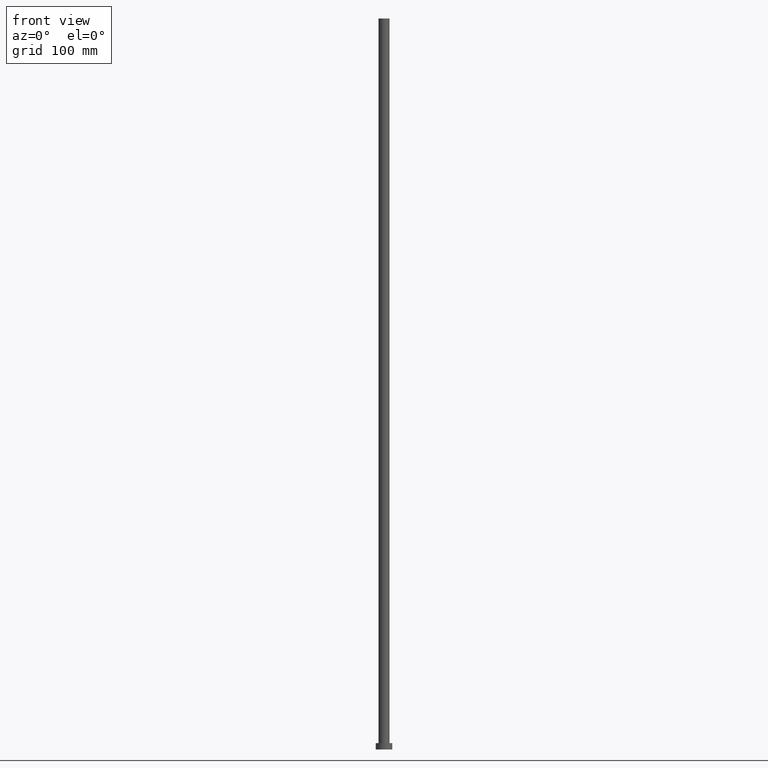
[diagram: clean part render]
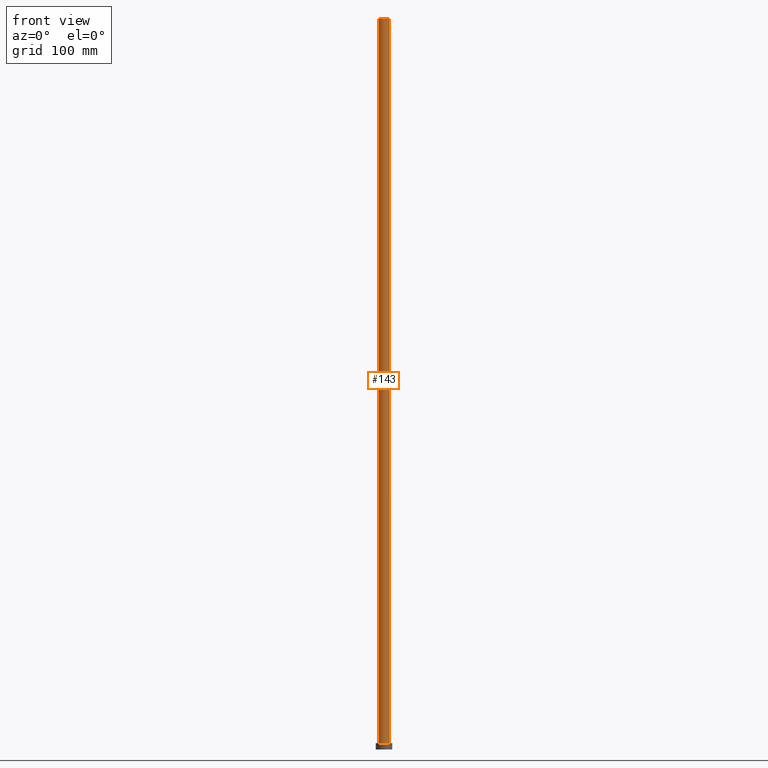
[diagram: same view with one face highlighted and labeled with its STEP entity id]
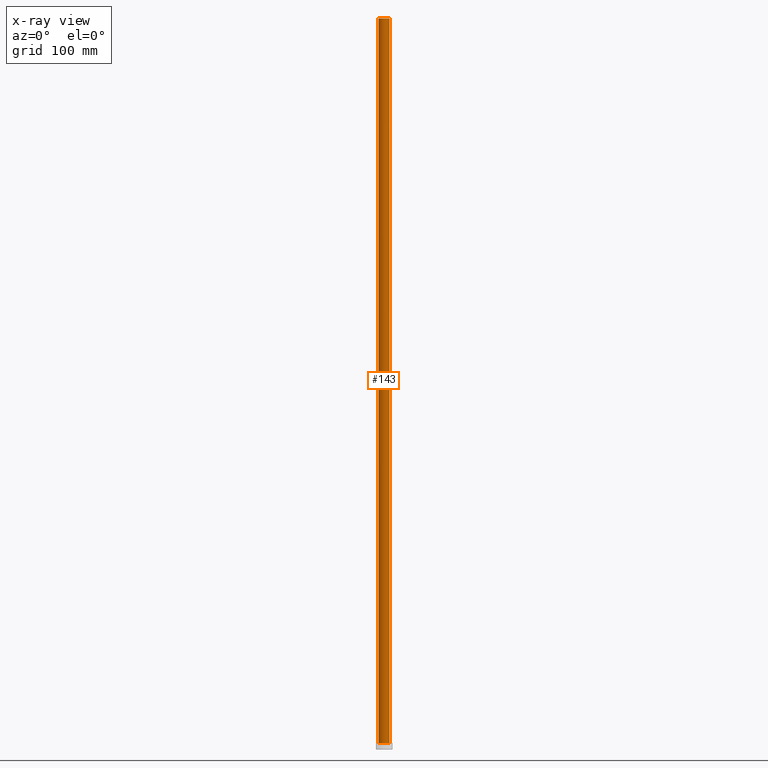
[diagram: x-ray of the same camera — body ghosted, the highlighted face saturated]
A machine part, front view. The second image highlights one B-rep face of the part: STEP entity #143.
The next image is the same camera in x-ray: the body ghosted, the highlighted face saturated — about 0% of this face is hidden behind the body in this view.
In plain terms, the highlighted cylindrical surface (edge-blend (fillet) strip) has radius 6 mm, axis along (-0, -0, -1).
Its self-contained STEP definition (entity closure, byte-faithful):
#11 = VERTEX_POINT ( 'NONE', #95 ) ;
#12 = DIRECTION ( 'NONE',  ( 1.000000000000000000, 0.000000000000000000, 0.000000000000000000 ) ) ;
#20 = CARTESIAN_POINT ( 'NONE',  ( -6.000000000000000888, 0.000000000000000000, 7.000000000000000000 ) ) ;
#22 = EDGE_CURVE ( 'NONE', #128, #83, #72, .T. ) ;
#31 = ORIENTED_EDGE ( 'NONE', *, *, #22, .T. ) ;
#44 = CIRCLE ( 'NONE', #174, 6.000000000000000888 ) ;
#55 = CARTESIAN_POINT ( 'NONE',  ( -6.000000000000000888, 0.000000000000000000, 800.0000000000000000 ) ) ;
#56 = DIRECTION ( 'NONE',  ( 0.000000000000000000, 0.000000000000000000, 1.000000000000000000 ) ) ;
#58 = DIRECTION ( 'NONE',  ( -0.000000000000000000, -0.000000000000000000, -1.000000000000000000 ) ) ;
#60 = EDGE_CURVE ( 'NONE', #11, #146, #214, .T. ) ;
#67 = AXIS2_PLACEMENT_3D ( 'NONE', #145, #202, #206 ) ;
#72 = LINE ( 'NONE', #55, #109 ) ;
#80 = EDGE_CURVE ( 'NONE', #83, #146, #169, .T. ) ;
#83 = VERTEX_POINT ( 'NONE', #20 ) ;
#93 = AXIS2_PLACEMENT_3D ( 'NONE', #155, #56, #217 ) ;
#94 = DIRECTION ( 'NONE',  ( -0.000000000000000000, -0.000000000000000000, -1.000000000000000000 ) ) ;
#95 = CARTESIAN_POINT ( 'NONE',  ( 6.000000000000000888, 7.347880794884120722E-16, 800.0000000000000000 ) ) ;
#102 = ORIENTED_EDGE ( 'NONE', *, *, #60, .F. ) ;
#109 = VECTOR ( 'NONE', #94, 1000.000000000000000 ) ;
#117 = CARTESIAN_POINT ( 'NONE',  ( 6.000000000000000888, 7.347880794884120722E-16, 800.0000000000000000 ) ) ;
#128 = VERTEX_POINT ( 'NONE', #239 ) ;
#140 = VECTOR ( 'NONE', #58, 1000.000000000000000 ) ;
#142 = ORIENTED_EDGE ( 'NONE', *, *, #162, .F. ) ;
#143 = ADVANCED_FACE ( 'NONE', ( #238 ), #223, .T. ) ;
#145 = CARTESIAN_POINT ( 'NONE',  ( 0.000000000000000000, 0.000000000000000000, 800.0000000000000000 ) ) ;
#146 = VERTEX_POINT ( 'NONE', #208 ) ;
#155 = CARTESIAN_POINT ( 'NONE',  ( 0.000000000000000000, 0.000000000000000000, 7.000000000000000000 ) ) ;
#162 = EDGE_CURVE ( 'NONE', #128, #11, #44, .T. ) ;
#164 = EDGE_LOOP ( 'NONE', ( #102, #142, #31, #189 ) ) ;
#169 = CIRCLE ( 'NONE', #93, 6.000000000000000888 ) ;
#174 = AXIS2_PLACEMENT_3D ( 'NONE', #183, #188, #12 ) ;
#183 = CARTESIAN_POINT ( 'NONE',  ( 0.000000000000000000, 0.000000000000000000, 800.0000000000000000 ) ) ;
#188 = DIRECTION ( 'NONE',  ( 0.000000000000000000, 0.000000000000000000, 1.000000000000000000 ) ) ;
#189 = ORIENTED_EDGE ( 'NONE', *, *, #80, .T. ) ;
#202 = DIRECTION ( 'NONE',  ( -0.000000000000000000, -0.000000000000000000, -1.000000000000000000 ) ) ;
#206 = DIRECTION ( 'NONE',  ( -1.000000000000000000, 0.000000000000000000, 0.000000000000000000 ) ) ;
#208 = CARTESIAN_POINT ( 'NONE',  ( 6.000000000000000888, 7.347880794884120722E-16, 7.000000000000000000 ) ) ;
#214 = LINE ( 'NONE', #117, #140 ) ;
#217 = DIRECTION ( 'NONE',  ( 1.000000000000000000, 0.000000000000000000, 0.000000000000000000 ) ) ;
#223 = CYLINDRICAL_SURFACE ( 'NONE', #67, 6.000000000000000888 ) ;
#238 = FACE_OUTER_BOUND ( 'NONE', #164, .T. ) ;
#239 = CARTESIAN_POINT ( 'NONE',  ( -6.000000000000000888, 0.000000000000000000, 800.0000000000000000 ) ) ;